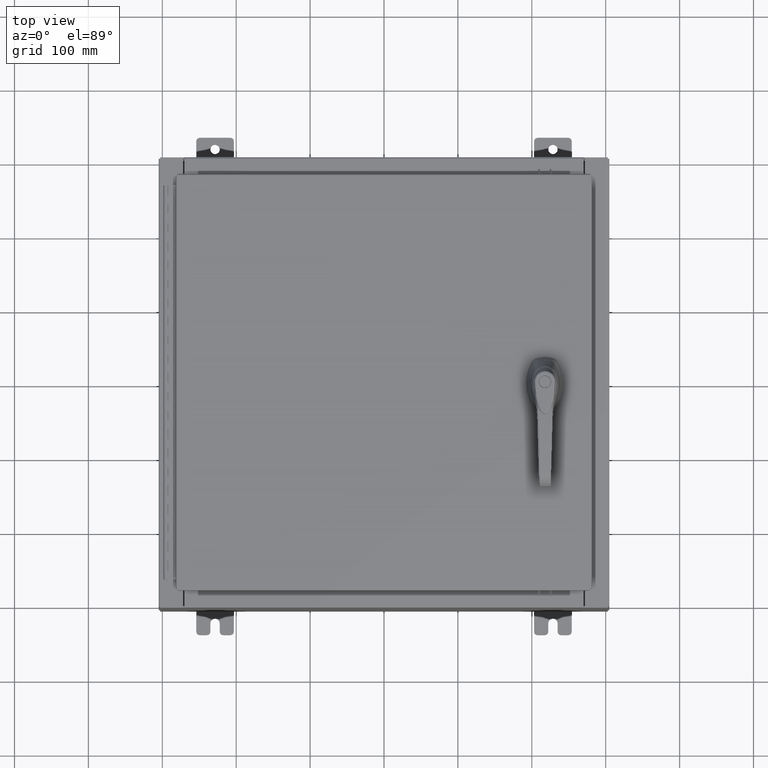
[diagram: clean part render]
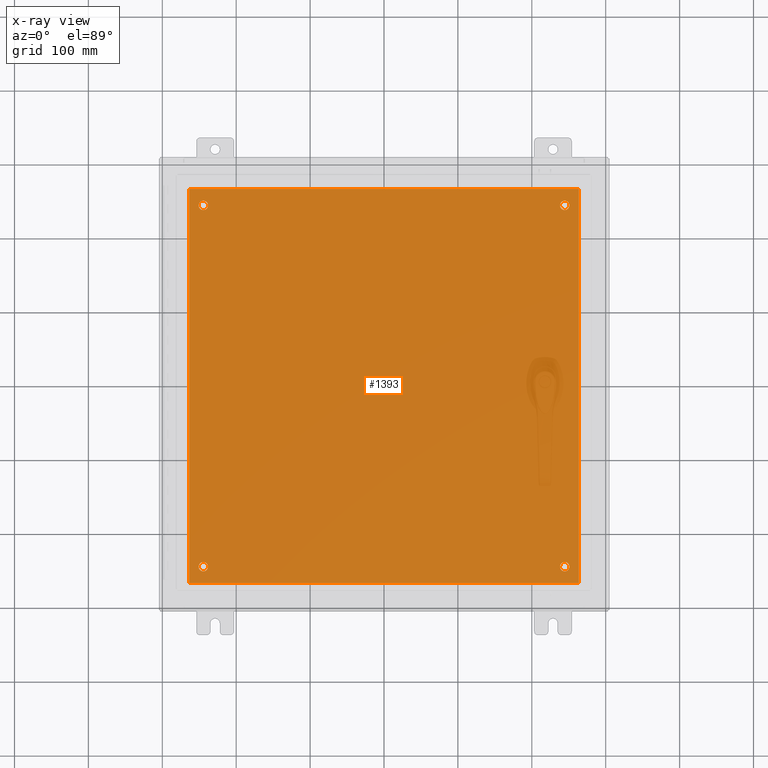
[diagram: x-ray — body ghosted, one internal face saturated and labeled with its STEP entity id]
A machine part, top view, then the same camera in x-ray: the body is ghosted and one INTERNAL B-rep face — a face not visible from any outside direction — is saturated and labeled: STEP entity #1393.
In plain terms, the highlighted planar face has unit normal (0, 0, -1).
Its self-contained STEP definition (entity closure, byte-faithful):
#865 = CARTESIAN_POINT ( 'NONE',  ( 10.38299999999999900, -10.50000000000000000, -0.1039999999999999800 ) ) ;
#1393 = ADVANCED_FACE ( 'NONE', ( #4099, #27210, #73277, #29944, #47496 ), #23747, .T. ) ;
#2927 = CARTESIAN_POINT ( 'NONE',  ( -10.38299999999999900, -10.50000000000000000, -0.1040000000000031300 ) ) ;
#4099 = FACE_BOUND ( 'NONE', #13839, .T. ) ;
#6254 = DIRECTION ( 'NONE',  ( -1.000000000000000000, 0.0000000000000000000, 0.0000000000000000000 ) ) ;
#6486 = AXIS2_PLACEMENT_3D ( 'NONE', #7485, #68123, #16265 ) ;
#7485 = CARTESIAN_POINT ( 'NONE',  ( 9.625000000000005300, -9.625000000000001800, -0.1039999999999999800 ) ) ;
#8458 = CIRCLE ( 'NONE', #13416, 0.2499999999999976100 ) ;
#8841 = VECTOR ( 'NONE', #38772, 39.37007874015748100 ) ;
#10035 = CARTESIAN_POINT ( 'NONE',  ( 9.625000000000005300, -9.625000000000001800, -0.1039999999999999800 ) ) ;
#10976 = LINE ( 'NONE', #25409, #77407 ) ;
#13416 = AXIS2_PLACEMENT_3D ( 'NONE', #26050, #86603, #34764 ) ;
#13828 = CARTESIAN_POINT ( 'NONE',  ( -9.375000000000005300, -9.625000000000001800, -0.1039999999999999800 ) ) ;
#13839 = EDGE_LOOP ( 'NONE', ( #20039, #63244 ) ) ;
#16265 = DIRECTION ( 'NONE',  ( -1.000000000000000000, 0.0000000000000000000, 0.0000000000000000000 ) ) ;
#16903 = AXIS2_PLACEMENT_3D ( 'NONE', #30674, #91190, #39390 ) ;
#17264 = VERTEX_POINT ( 'NONE', #102361 ) ;
#17906 = CARTESIAN_POINT ( 'NONE',  ( 10.38300000000000100, -10.50000000000000200, -0.1040000000000009100 ) ) ;
#18311 = EDGE_CURVE ( 'NONE', #26193, #108251, #24106, .T. ) ;
#18778 = DIRECTION ( 'NONE',  ( -1.000000000000000000, 0.0000000000000000000, 0.0000000000000000000 ) ) ;
#19823 = ORIENTED_EDGE ( 'NONE', *, *, #102025, .T. ) ;
#19897 = VECTOR ( 'NONE', #69749, 39.37007874015748100 ) ;
#20039 = ORIENTED_EDGE ( 'NONE', *, *, #70212, .T. ) ;
#22029 = CARTESIAN_POINT ( 'NONE',  ( -10.38299999999999900, 10.50000000000000400, -0.1040000000000031300 ) ) ;
#22301 = CARTESIAN_POINT ( 'NONE',  ( -9.375000000000005300, 9.625000000000001800, -0.1039999999999999800 ) ) ;
#22636 = LINE ( 'NONE', #17906, #19897 ) ;
#23747 = PLANE ( 'NONE',  #84487 ) ;
#24106 = LINE ( 'NONE', #70780, #64699 ) ;
#25409 = CARTESIAN_POINT ( 'NONE',  ( -10.38299999999999900, 10.50000000000000400, -0.1040000000000031300 ) ) ;
#26050 = CARTESIAN_POINT ( 'NONE',  ( 9.625000000000005300, 9.625000000000001800, -0.1039999999999999800 ) ) ;
#26193 = VERTEX_POINT ( 'NONE', #2927 ) ;
#26369 = EDGE_CURVE ( 'NONE', #39982, #69200, #61745, .T. ) ;
#27210 = FACE_BOUND ( 'NONE', #87485, .T. ) ;
#27604 = CARTESIAN_POINT ( 'NONE',  ( -9.625000000000005300, -9.625000000000001800, -0.1039999999999999800 ) ) ;
#29178 = VERTEX_POINT ( 'NONE', #56786 ) ;
#29562 = EDGE_CURVE ( 'NONE', #17264, #75428, #8458, .T. ) ;
#29638 = ORIENTED_EDGE ( 'NONE', *, *, #69524, .F. ) ;
#29944 = FACE_BOUND ( 'NONE', #91401, .T. ) ;
#30674 = CARTESIAN_POINT ( 'NONE',  ( -9.625000000000005300, -9.625000000000001800, -0.1039999999999999800 ) ) ;
#33370 = CIRCLE ( 'NONE', #65178, 0.2499999999999987000 ) ;
#33914 = AXIS2_PLACEMENT_3D ( 'NONE', #48458, #109009, #57182 ) ;
#34665 = AXIS2_PLACEMENT_3D ( 'NONE', #109987, #58195, #6254 ) ;
#34764 = DIRECTION ( 'NONE',  ( -1.000000000000000000, 0.0000000000000000000, 0.0000000000000000000 ) ) ;
#36312 = DIRECTION ( 'NONE',  ( -1.000000000000000000, 0.0000000000000000000, 0.0000000000000000000 ) ) ;
#37832 = DIRECTION ( 'NONE',  ( -0.0000000000000000000, -0.0000000000000000000, 1.000000000000000000 ) ) ;
#37893 = ORIENTED_EDGE ( 'NONE', *, *, #54259, .T. ) ;
#38772 = DIRECTION ( 'NONE',  ( -1.000000000000000000, -0.0000000000000000000, -0.0000000000000000000 ) ) ;
#39390 = DIRECTION ( 'NONE',  ( -1.000000000000000000, 0.0000000000000000000, 0.0000000000000000000 ) ) ;
#39982 = VERTEX_POINT ( 'NONE', #47141 ) ;
#40298 = CARTESIAN_POINT ( 'NONE',  ( 0.0000000000000000000, 0.0000000000000000000, -0.1039999999999999800 ) ) ;
#41062 = EDGE_LOOP ( 'NONE', ( #96458, #76112, #55666, #29638 ) ) ;
#43773 = CIRCLE ( 'NONE', #102277, 0.2499999999999987000 ) ;
#46061 = DIRECTION ( 'NONE',  ( 0.0000000000000000000, 0.0000000000000000000, -1.000000000000000000 ) ) ;
#46677 = VERTEX_POINT ( 'NONE', #22029 ) ;
#47141 = CARTESIAN_POINT ( 'NONE',  ( -9.875000000000005300, -9.625000000000001800, -0.1039999999999999800 ) ) ;
#47496 = FACE_OUTER_BOUND ( 'NONE', #41062, .T. ) ;
#48458 = CARTESIAN_POINT ( 'NONE',  ( 9.625000000000005300, 9.625000000000001800, -0.1039999999999999800 ) ) ;
#49486 = CARTESIAN_POINT ( 'NONE',  ( -9.875000000000005300, 9.625000000000001800, -0.1039999999999999800 ) ) ;
#52239 = VERTEX_POINT ( 'NONE', #22301 ) ;
#52700 = CIRCLE ( 'NONE', #33914, 0.2499999999999976100 ) ;
#52986 = DIRECTION ( 'NONE',  ( 1.000000000000000000, 0.0000000000000000000, 0.0000000000000000000 ) ) ;
#54259 = EDGE_CURVE ( 'NONE', #52239, #87586, #55128, .T. ) ;
#55128 = CIRCLE ( 'NONE', #34665, 0.2499999999999987000 ) ;
#55666 = ORIENTED_EDGE ( 'NONE', *, *, #84823, .F. ) ;
#56231 = VERTEX_POINT ( 'NONE', #105410 ) ;
#56786 = CARTESIAN_POINT ( 'NONE',  ( 9.875000000000003600, -9.625000000000001800, -0.1039999999999999800 ) ) ;
#57182 = DIRECTION ( 'NONE',  ( -1.000000000000000000, 0.0000000000000000000, 0.0000000000000000000 ) ) ;
#58195 = DIRECTION ( 'NONE',  ( -0.0000000000000000000, -0.0000000000000000000, 1.000000000000000000 ) ) ;
#59006 = VERTEX_POINT ( 'NONE', #109818 ) ;
#61745 = CIRCLE ( 'NONE', #16903, 0.2499999999999987000 ) ;
#62947 = ORIENTED_EDGE ( 'NONE', *, *, #69029, .T. ) ;
#63244 = ORIENTED_EDGE ( 'NONE', *, *, #26369, .T. ) ;
#64699 = VECTOR ( 'NONE', #52986, 39.37007874015748100 ) ;
#65178 = AXIS2_PLACEMENT_3D ( 'NONE', #27604, #88139, #36312 ) ;
#66736 = DIRECTION ( 'NONE',  ( -1.000000000000000000, 0.0000000000000000000, -0.0000000000000000000 ) ) ;
#68123 = DIRECTION ( 'NONE',  ( -0.0000000000000000000, -0.0000000000000000000, 1.000000000000000000 ) ) ;
#68163 = ORIENTED_EDGE ( 'NONE', *, *, #73598, .T. ) ;
#69029 = EDGE_CURVE ( 'NONE', #59006, #29178, #90366, .T. ) ;
#69200 = VERTEX_POINT ( 'NONE', #13828 ) ;
#69524 = EDGE_CURVE ( 'NONE', #108251, #56231, #22636, .T. ) ;
#69749 = DIRECTION ( 'NONE',  ( 0.0000000000000000000, 1.000000000000000000, 0.0000000000000000000 ) ) ;
#70212 = EDGE_CURVE ( 'NONE', #69200, #39982, #33370, .T. ) ;
#70619 = DIRECTION ( 'NONE',  ( -0.0000000000000000000, -0.0000000000000000000, 1.000000000000000000 ) ) ;
#70780 = CARTESIAN_POINT ( 'NONE',  ( -10.50000000000000200, -10.50000000000000000, -0.1039999999999999800 ) ) ;
#73277 = FACE_BOUND ( 'NONE', #103908, .T. ) ;
#73598 = EDGE_CURVE ( 'NONE', #87586, #52239, #43773, .T. ) ;
#74492 = CARTESIAN_POINT ( 'NONE',  ( 9.875000000000003600, 9.625000000000001800, -0.1039999999999999800 ) ) ;
#75428 = VERTEX_POINT ( 'NONE', #74492 ) ;
#75941 = AXIS2_PLACEMENT_3D ( 'NONE', #10035, #70619, #18778 ) ;
#76112 = ORIENTED_EDGE ( 'NONE', *, *, #99815, .F. ) ;
#77266 = DIRECTION ( 'NONE',  ( 0.0000000000000000000, -1.000000000000000000, 0.0000000000000000000 ) ) ;
#77407 = VECTOR ( 'NONE', #77266, 39.37007874015748100 ) ;
#84487 = AXIS2_PLACEMENT_3D ( 'NONE', #40298, #46061, #66736 ) ;
#84823 = EDGE_CURVE ( 'NONE', #56231, #46677, #95528, .T. ) ;
#86603 = DIRECTION ( 'NONE',  ( -0.0000000000000000000, -0.0000000000000000000, 1.000000000000000000 ) ) ;
#87485 = EDGE_LOOP ( 'NONE', ( #109088, #62947 ) ) ;
#87586 = VERTEX_POINT ( 'NONE', #49486 ) ;
#88139 = DIRECTION ( 'NONE',  ( -0.0000000000000000000, -0.0000000000000000000, 1.000000000000000000 ) ) ;
#89640 = CARTESIAN_POINT ( 'NONE',  ( -9.625000000000005300, 9.625000000000001800, -0.1039999999999999800 ) ) ;
#90366 = CIRCLE ( 'NONE', #75941, 0.2499999999999976100 ) ;
#90945 = CARTESIAN_POINT ( 'NONE',  ( -10.50000000000000000, 10.50000000000000200, -0.1039999999999999800 ) ) ;
#91190 = DIRECTION ( 'NONE',  ( -0.0000000000000000000, -0.0000000000000000000, 1.000000000000000000 ) ) ;
#91401 = EDGE_LOOP ( 'NONE', ( #37893, #68163 ) ) ;
#91513 = EDGE_CURVE ( 'NONE', #29178, #59006, #93632, .T. ) ;
#93632 = CIRCLE ( 'NONE', #6486, 0.2499999999999976100 ) ;
#95528 = LINE ( 'NONE', #90945, #8841 ) ;
#96458 = ORIENTED_EDGE ( 'NONE', *, *, #18311, .F. ) ;
#98308 = DIRECTION ( 'NONE',  ( -1.000000000000000000, 0.0000000000000000000, 0.0000000000000000000 ) ) ;
#99815 = EDGE_CURVE ( 'NONE', #46677, #26193, #10976, .T. ) ;
#102025 = EDGE_CURVE ( 'NONE', #75428, #17264, #52700, .T. ) ;
#102277 = AXIS2_PLACEMENT_3D ( 'NONE', #89640, #37832, #98308 ) ;
#102361 = CARTESIAN_POINT ( 'NONE',  ( 9.375000000000007100, 9.625000000000001800, -0.1039999999999999800 ) ) ;
#103908 = EDGE_LOOP ( 'NONE', ( #19823, #104258 ) ) ;
#104258 = ORIENTED_EDGE ( 'NONE', *, *, #29562, .T. ) ;
#105410 = CARTESIAN_POINT ( 'NONE',  ( 10.38300000000000100, 10.50000000000000200, -0.1039999999999999800 ) ) ;
#108251 = VERTEX_POINT ( 'NONE', #865 ) ;
#109009 = DIRECTION ( 'NONE',  ( -0.0000000000000000000, -0.0000000000000000000, 1.000000000000000000 ) ) ;
#109088 = ORIENTED_EDGE ( 'NONE', *, *, #91513, .T. ) ;
#109818 = CARTESIAN_POINT ( 'NONE',  ( 9.375000000000007100, -9.625000000000001800, -0.1039999999999999800 ) ) ;
#109987 = CARTESIAN_POINT ( 'NONE',  ( -9.625000000000005300, 9.625000000000001800, -0.1039999999999999800 ) ) ;